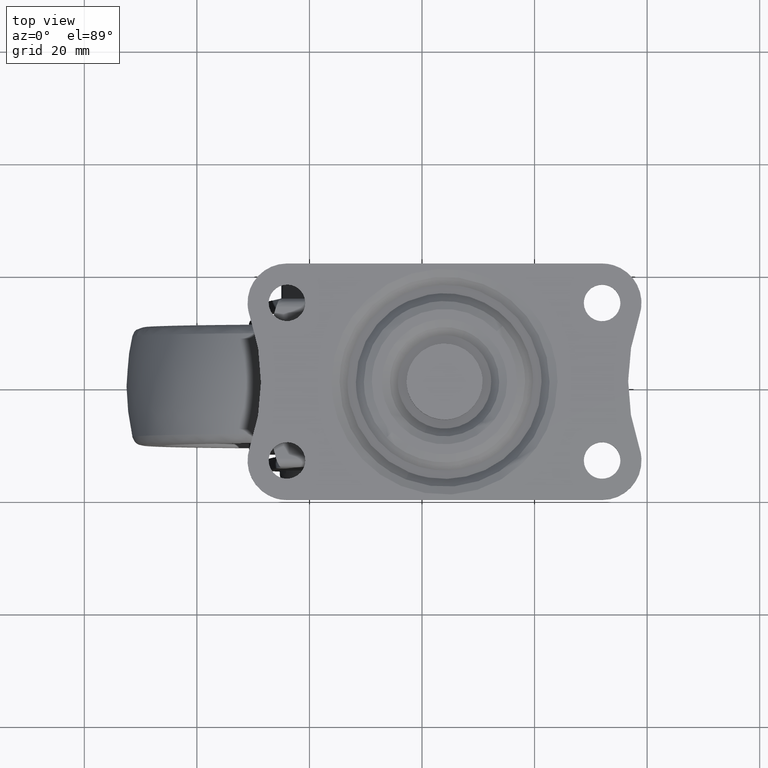
[diagram: clean part render]
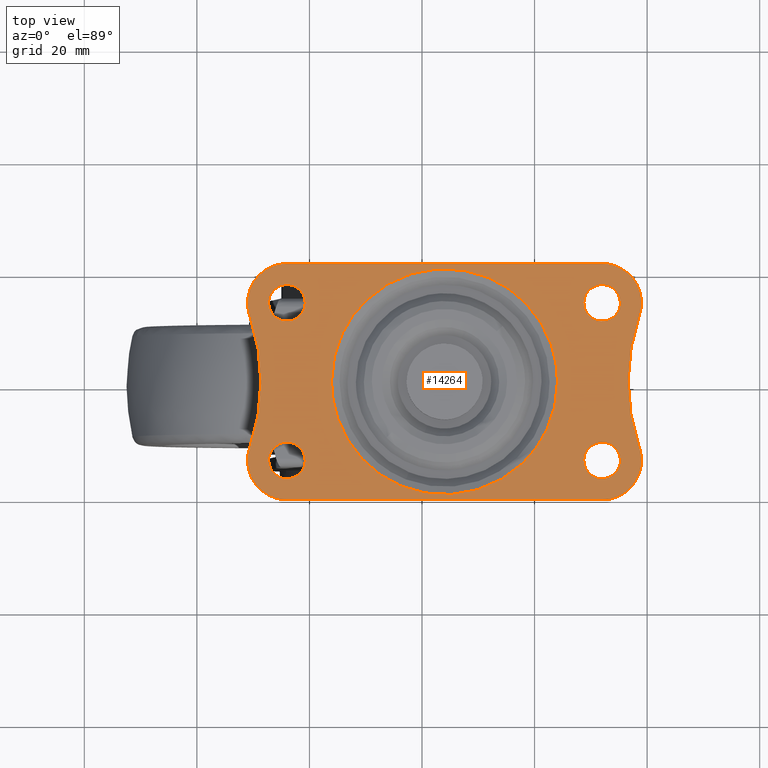
[diagram: same view with one face highlighted and labeled with its STEP entity id]
A machine part, top view. The second image highlights one B-rep face of the part: STEP entity #14264.
In plain terms, the highlighted face is a freeform B-spline surface patch.
Its self-contained STEP definition (entity closure, byte-faithful):
#13810=CARTESIAN_POINT('',(-14.495260061129150,-23.097899918595861,49.500004000000096));
#13811=CARTESIAN_POINT('',(62.495260426807043,-23.097899918595861,49.500004000000096));
#13812=CARTESIAN_POINT('',(-14.495260061129150,23.097901045123638,49.500004000000096));
#13813=CARTESIAN_POINT('',(62.495260426807043,23.097901045123638,49.500004000000096));
#13814=B_SPLINE_SURFACE_WITH_KNOTS('',1,1,((#13810,#13812),(#13811,#13813)),.UNSPECIFIED.,.F.,.F.,.U.,(2,2),(2,2),(0.0,76.990520487936180),(0.0,46.195800963719492),.UNSPECIFIED.);
#13815=CARTESIAN_POINT('',(-4.000000000000201,20.999991999999999,49.500004000000096));
#13816=VERTEX_POINT('',#13815);
#13817=CARTESIAN_POINT('',(52.0,21.0,49.500004000000096));
#13818=VERTEX_POINT('',#13817);
#13819=CARTESIAN_POINT('',(-4.000000000000201,20.999991999999999,49.500004000000096));
#13820=CARTESIAN_POINT('',(52.0,21.0,49.500004000000096));
#13821=QUASI_UNIFORM_CURVE('',1,(#13819,#13820),.UNSPECIFIED.,.F.,.U.);
#13822=EDGE_CURVE('',#13816,#13818,#13821,.T.);
#13823=ORIENTED_EDGE('',*,*,#13822,.F.);
#13824=CARTESIAN_POINT('',(-10.609302452750301,11.694110006271140,49.500004000000096));
#13825=VERTEX_POINT('',#13824);
#13826=CARTESIAN_POINT('',(-4.000000000000201,20.999991999999999,49.500004000000096));
#13827=CARTESIAN_POINT('',(-4.590817880181923,21.000143581031612,49.500004000000182));
#13828=CARTESIAN_POINT('',(-5.529068493665626,20.880465126120580,49.500003999999898));
#13829=CARTESIAN_POINT('',(-6.947926574388647,20.398175510146949,49.500004000000111));
#13830=CARTESIAN_POINT('',(-8.010244510494326,19.788161400590671,49.500004000000366));
#13831=CARTESIAN_POINT('',(-8.883741834818508,19.040968303882451,49.500003999999642));
#13832=CARTESIAN_POINT('',(-9.608926462760206,18.241633568485501,49.500004000000452));
#13833=CARTESIAN_POINT('',(-10.233940816855281,17.272628221677280,49.500004000000217));
#13834=CARTESIAN_POINT('',(-10.773155997097380,15.948513857360940,49.500003999999826));
#13835=CARTESIAN_POINT('',(-11.044553295906230,14.503740490516821,49.500004000000573));
#13836=CARTESIAN_POINT('',(-10.976428743371789,13.001531307668390,49.500003999999322));
#13837=CARTESIAN_POINT('',(-10.746698832655239,12.087864409828381,49.500004000000871));
#13838=CARTESIAN_POINT('',(-10.609302452750301,11.694110006271140,49.500004000000096));
#13839=B_SPLINE_CURVE_WITH_KNOTS('',3,(#13826,#13827,#13828,#13829,#13830,#13831,#13832,#13833,#13834,#13835,#13836,#13837,#13838),.UNSPECIFIED.,.F.,.U.,(4,1,1,1,1,1,1,1,1,1,4),(0.000000030756677,1.772421184083566,2.815052419987493,4.483245367878242,5.421609891618825,6.255699334423510,7.715336022270327,8.862210562082272,10.530409219150130,12.094328366116750,13.345459989930159),.UNSPECIFIED.);
#13840=EDGE_CURVE('',#13816,#13825,#13839,.T.);
#13841=ORIENTED_EDGE('',*,*,#13840,.T.);
#13842=CARTESIAN_POINT('',(-10.609300911396559,-11.694118695988420,49.500004000000096));
#13843=VERTEX_POINT('',#13842);
#13844=CARTESIAN_POINT('',(-10.609300911396559,-11.694118695988420,49.500004000000096));
#13845=CARTESIAN_POINT('',(-6.529409409928793,-0.000004075981618,49.500004000000104));
#13846=CARTESIAN_POINT('',(-10.609302452750290,11.694110006271130,49.500004000000096));
#13854=(BOUNDED_CURVE()B_SPLINE_CURVE(2,(#13844,#13845,#13846),.UNSPECIFIED.,.F.,.U.)CURVE()GEOMETRIC_REPRESENTATION_ITEM()QUASI_UNIFORM_CURVE()RATIONAL_B_SPLINE_CURVE((1.0,0.944186381534292,1.0))REPRESENTATION_ITEM(''));
#13855=EDGE_CURVE('',#13843,#13825,#13854,.T.);
#13856=ORIENTED_EDGE('',*,*,#13855,.F.);
#13857=CARTESIAN_POINT('',(-3.999996000000095,-21.0,49.500004000000096));
#13858=VERTEX_POINT('',#13857);
#13859=CARTESIAN_POINT('',(-10.609300911396559,-11.694118695988420,49.500004000000096));
#13860=CARTESIAN_POINT('',(-10.827075632768670,-12.317519731291700,49.500004000000047));
#13861=CARTESIAN_POINT('',(-11.036602549756390,-13.385283981151700,49.500004000000040));
#13862=CARTESIAN_POINT('',(-10.981547815569950,-14.884676388545749,49.500004000000288));
#13863=CARTESIAN_POINT('',(-10.735395471647101,-16.009513509752040,49.500004000000011));
#13864=CARTESIAN_POINT('',(-10.292534392574730,-17.145353167864421,49.500004000000089));
#13865=CARTESIAN_POINT('',(-9.732755403888293,-18.072700705970050,49.500004000000281));
#13866=CARTESIAN_POINT('',(-8.986506478503952,-18.946256495739110,49.500003999999997));
#13867=CARTESIAN_POINT('',(-8.227852279617316,-19.614864490665209,49.500004000000168));
#13868=CARTESIAN_POINT('',(-7.198313510599230,-20.268981308736809,49.500004000000011));
#13869=CARTESIAN_POINT('',(-5.807069678618808,-20.836506443681401,49.500004000000366));
#13870=CARTESIAN_POINT('',(-4.660329862911716,-21.000229990318850,49.500003999999663));
#13871=CARTESIAN_POINT('',(-3.999996000000095,-21.0,49.500004000000096));
#13872=B_SPLINE_CURVE_WITH_KNOTS('',3,(#13859,#13860,#13861,#13862,#13863,#13864,#13865,#13866,#13867,#13868,#13869,#13870,#13871),.UNSPECIFIED.,.F.,.U.,(4,1,1,1,1,1,1,1,1,1,4),(0.000000030607620,1.980946822740105,3.232103474479771,4.483245378366622,5.421609904388319,6.881246496898768,7.715336040620074,8.862210582713079,9.904831999159065,11.364500555676470,13.345460021234841),.UNSPECIFIED.);
#13873=EDGE_CURVE('',#13843,#13858,#13872,.T.);
#13874=ORIENTED_EDGE('',*,*,#13873,.T.);
#13875=CARTESIAN_POINT('',(52.0,-21.0,49.500004000000096));
#13876=VERTEX_POINT('',#13875);
#13877=CARTESIAN_POINT('',(52.0,-21.0,49.500004000000096));
#13878=CARTESIAN_POINT('',(-3.999996000000095,-21.0,49.500004000000096));
#13879=QUASI_UNIFORM_CURVE('',1,(#13877,#13878),.UNSPECIFIED.,.F.,.U.);
#13880=EDGE_CURVE('',#13876,#13858,#13879,.T.);
#13881=ORIENTED_EDGE('',*,*,#13880,.F.);
#13882=CARTESIAN_POINT('',(58.609300893695803,-11.694117002700880,49.500004000000096));
#13883=VERTEX_POINT('',#13882);
#13884=CARTESIAN_POINT('',(52.0,-21.0,49.500004000000096));
#13885=CARTESIAN_POINT('',(52.660347102165602,-21.000269293688039,49.500003999999997));
#13886=CARTESIAN_POINT('',(53.737524014230260,-20.846344989830861,49.500004000000182));
#13887=CARTESIAN_POINT('',(55.232634791455467,-20.262420056923251,49.500004000000153));
#13888=CARTESIAN_POINT('',(56.260813391096683,-19.598380166209569,49.500004000000018));
#13889=CARTESIAN_POINT('',(57.207973118888177,-18.725285979161580,49.500004000000217));
#13890=CARTESIAN_POINT('',(57.960000917128298,-17.760835829100820,49.500004000000189));
#13891=CARTESIAN_POINT('',(58.503759211200219,-16.666403447507189,49.500003999999933));
#13892=CARTESIAN_POINT('',(58.869437678890698,-15.504013918830211,49.500004000000317));
#13893=CARTESIAN_POINT('',(59.036363368870262,-14.327754264261840,49.500004000000708));
#13894=CARTESIAN_POINT('',(58.964627666531527,-12.968822975085040,49.500003999998839));
#13895=CARTESIAN_POINT('',(58.758174339768878,-12.120681764516929,49.500004000000992));
#13896=CARTESIAN_POINT('',(58.609300893695803,-11.694117002700880,49.500004000000096));
#13897=B_SPLINE_CURVE_WITH_KNOTS('',3,(#13884,#13885,#13886,#13887,#13888,#13889,#13890,#13891,#13892,#13893,#13894,#13895,#13896),.UNSPECIFIED.,.F.,.U.,(4,1,1,1,1,1,1,1,1,1,4),(0.000000030863946,1.980946914483642,3.232103623964944,4.796034121004691,5.630134421133231,7.089766381036650,8.445169831952786,9.279256728311722,10.738934241651670,11.990065895340830,13.345460637629790),.UNSPECIFIED.);
#13898=EDGE_CURVE('',#13876,#13883,#13897,.T.);
#13899=ORIENTED_EDGE('',*,*,#13898,.T.);
#13900=CARTESIAN_POINT('',(58.609304768415697,11.694118286165761,49.500004000000096));
#13901=VERTEX_POINT('',#13900);
#13902=CARTESIAN_POINT('',(58.609304768415697,11.694118286165761,49.500004000000096));
#13903=CARTESIAN_POINT('',(54.529407649958948,-0.000000083384210,49.500004000000104));
#13904=CARTESIAN_POINT('',(58.609300893695803,-11.694117002700880,49.500004000000096));
#13912=(BOUNDED_CURVE()B_SPLINE_CURVE(2,(#13902,#13903,#13904),.UNSPECIFIED.,.F.,.U.)CURVE()GEOMETRIC_REPRESENTATION_ITEM()QUASI_UNIFORM_CURVE()RATIONAL_B_SPLINE_CURVE((1.0,0.944186336941886,1.0))REPRESENTATION_ITEM(''));
#13913=EDGE_CURVE('',#13901,#13883,#13912,.T.);
#13914=ORIENTED_EDGE('',*,*,#13913,.F.);
#13915=CARTESIAN_POINT('',(58.609304768415697,11.694118286165761,49.500004000000096));
#13916=CARTESIAN_POINT('',(58.781122181626493,12.186294331711620,49.500004000000139));
#13917=CARTESIAN_POINT('',(58.959599809029690,12.970546693596370,49.500004000000089));
#13918=CARTESIAN_POINT('',(59.027473430861889,14.256943050028889,49.500004000000132));
#13919=CARTESIAN_POINT('',(58.907309630051621,15.333463204872229,49.500004000000061));
#13920=CARTESIAN_POINT('',(58.548145424196832,16.571216975460569,49.500004000000231));
#13921=CARTESIAN_POINT('',(58.073353934307413,17.544817833019160,49.500003999999947));
#13922=CARTESIAN_POINT('',(57.408036100113769,18.481481205179321,49.500004000000217));
#13923=CARTESIAN_POINT('',(56.568166335005060,19.367010271011981,49.500004000000096));
#13924=CARTESIAN_POINT('',(55.449847707803713,20.149739929041981,49.500004000000189));
#13925=CARTESIAN_POINT('',(54.293864993980137,20.641273222648589,49.500004000000317));
#13926=CARTESIAN_POINT('',(53.181594486161707,20.929085798153839,49.500003999999670));
#13927=CARTESIAN_POINT('',(52.451798431793712,21.000054179832031,49.500004000000281));
#13928=CARTESIAN_POINT('',(52.0,21.0,49.500004000000096));
#13929=B_SPLINE_CURVE_WITH_KNOTS('',3,(#13915,#13916,#13917,#13918,#13919,#13920,#13921,#13922,#13923,#13924,#13925,#13926,#13927,#13928),.UNSPECIFIED.,.F.,.U.,(4,1,1,1,1,1,1,1,1,1,1,4),(0.000000030605683,1.563896725557600,2.398000267779308,3.857674610128575,4.796034055454516,6.255699552766679,7.089766284622212,8.236650439493825,9.904832321311094,11.155979825326281,11.990065731704171,13.345460455295390),.UNSPECIFIED.);
#13930=EDGE_CURVE('',#13901,#13818,#13929,.T.);
#13931=ORIENTED_EDGE('',*,*,#13930,.T.);
#13932=EDGE_LOOP('',(#13823,#13841,#13856,#13874,#13881,#13899,#13914,#13931));
#13933=FACE_OUTER_BOUND('',#13932,.T.);
#13934=CARTESIAN_POINT('',(3.921572875253802,1.421085E-014,49.500004000000096));
#13935=VERTEX_POINT('',#13934);
#13936=CARTESIAN_POINT('',(10.072532652919721,14.462672259828960,49.500004000000089));
#13937=VERTEX_POINT('',#13936);
#13938=CARTESIAN_POINT('',(3.921572875253802,1.421085E-014,49.500004000000096));
#13939=CARTESIAN_POINT('',(3.921572877020295,8.539334591529752,49.500004000000096));
#13940=CARTESIAN_POINT('',(10.072532652919723,14.462672259828956,49.500004000000089));
#13948=(BOUNDED_CURVE()B_SPLINE_CURVE(2,(#13938,#13939,#13940),.UNSPECIFIED.,.F.,.U.)B_SPLINE_CURVE_WITH_KNOTS((3,3),(0.500000000000000,0.627844262562522),.UNSPECIFIED.)CURVE()GEOMETRIC_REPRESENTATION_ITEM()RATIONAL_B_SPLINE_CURVE((1.0,0.850221129724923,0.853629213191965))REPRESENTATION_ITEM(''));
#13949=EDGE_CURVE('',#13935,#13937,#13948,.T.);
#13950=ORIENTED_EDGE('',*,*,#13949,.T.);
#13951=CARTESIAN_POINT('',(44.078427124746213,1.421085E-014,49.500004000000096));
#13952=VERTEX_POINT('',#13951);
#13953=CARTESIAN_POINT('',(10.072532652919723,14.462672259828956,49.500004000000089));
#13954=CARTESIAN_POINT('',(15.904089821322337,20.078427121392043,49.500004000000089));
#13955=CARTESIAN_POINT('',(24.000000002517780,20.078427122131679,49.500004000000089));
#13956=CARTESIAN_POINT('',(44.078427125497498,20.078427123966058,49.500004000000096));
#13957=CARTESIAN_POINT('',(44.078427124746213,1.421085E-014,49.500004000000096));
#13965=(BOUNDED_CURVE()B_SPLINE_CURVE(2,(#13953,#13954,#13955,#13956,#13957),.UNSPECIFIED.,.F.,.U.)B_SPLINE_CURVE_WITH_KNOTS((3,2,3),(0.627844262562522,0.750000000000000,1.0),.UNSPECIFIED.)CURVE()GEOMETRIC_REPRESENTATION_ITEM()RATIONAL_B_SPLINE_CURVE((0.853629213191965,0.856885651461625,1.0,0.707106781186548,1.0))REPRESENTATION_ITEM(''));
#13966=EDGE_CURVE('',#13937,#13952,#13965,.T.);
#13967=ORIENTED_EDGE('',*,*,#13966,.T.);
#13968=CARTESIAN_POINT('',(37.927467347080281,-14.462672259828940,49.500004000000096));
#13969=VERTEX_POINT('',#13968);
#13970=CARTESIAN_POINT('',(44.078427124746213,1.421085E-014,49.500004000000096));
#13971=CARTESIAN_POINT('',(44.078427122979711,-8.539334591529729,49.500004000000096));
#13972=CARTESIAN_POINT('',(37.927467347080281,-14.462672259828944,49.500004000000096));
#13980=(BOUNDED_CURVE()B_SPLINE_CURVE(2,(#13970,#13971,#13972),.UNSPECIFIED.,.F.,.U.)B_SPLINE_CURVE_WITH_KNOTS((3,3),(0.0,0.127844262562522),.UNSPECIFIED.)CURVE()GEOMETRIC_REPRESENTATION_ITEM()RATIONAL_B_SPLINE_CURVE((1.0,0.850221129724922,0.853629213191965))REPRESENTATION_ITEM(''));
#13981=EDGE_CURVE('',#13952,#13969,#13980,.T.);
#13982=ORIENTED_EDGE('',*,*,#13981,.T.);
#13983=CARTESIAN_POINT('',(37.927467347080281,-14.462672259828944,49.500004000000096));
#13984=CARTESIAN_POINT('',(32.095910178677670,-20.078427121392014,49.500004000000096));
#13985=CARTESIAN_POINT('',(23.999999997482220,-20.078427122131650,49.500004000000096));
#13986=CARTESIAN_POINT('',(3.921572874502515,-20.078427123966033,49.500004000000096));
#13987=CARTESIAN_POINT('',(3.921572875253802,1.421085E-014,49.500004000000096));
#13995=(BOUNDED_CURVE()B_SPLINE_CURVE(2,(#13983,#13984,#13985,#13986,#13987),.UNSPECIFIED.,.F.,.U.)B_SPLINE_CURVE_WITH_KNOTS((3,2,3),(0.127844262562522,0.250000000000000,0.500000000000000),.UNSPECIFIED.)CURVE()GEOMETRIC_REPRESENTATION_ITEM()RATIONAL_B_SPLINE_CURVE((0.853629213191965,0.856885651461625,1.0,0.707106781186548,1.0))REPRESENTATION_ITEM(''));
#13996=EDGE_CURVE('',#13969,#13935,#13995,.T.);
#13997=ORIENTED_EDGE('',*,*,#13996,.T.);
#13998=EDGE_LOOP('',(#13950,#13967,#13982,#13997));
#13999=FACE_BOUND('',#13998,.T.);
#14000=CARTESIAN_POINT('',(48.749999999999993,14.0,49.500004000000096));
#14001=VERTEX_POINT('',#14000);
#14002=CARTESIAN_POINT('',(51.745007703110929,10.760018683923141,49.500004000000096));
#14003=VERTEX_POINT('',#14002);
#14004=CARTESIAN_POINT('',(48.749999999999993,14.0,49.500004000000096));
#14005=CARTESIAN_POINT('',(48.750000000000000,10.995731121407630,49.500004000000089));
#14006=CARTESIAN_POINT('',(51.745007703110929,10.760018683923125,49.500004000000096));
#14014=(BOUNDED_CURVE()B_SPLINE_CURVE(2,(#14004,#14005,#14006),.UNSPECIFIED.,.F.,.U.)B_SPLINE_CURVE_WITH_KNOTS((3,3),(0.500000000000000,0.736331288158200),.UNSPECIFIED.)CURVE()GEOMETRIC_REPRESENTATION_ITEM()RATIONAL_B_SPLINE_CURVE((1.0,0.723120673220061,0.969723330138347))REPRESENTATION_ITEM(''));
#14015=EDGE_CURVE('',#14001,#14003,#14014,.T.);
#14016=ORIENTED_EDGE('',*,*,#14015,.F.);
#14017=CARTESIAN_POINT('',(52.254992296889078,17.239981316076861,49.500004000000096));
#14018=VERTEX_POINT('',#14017);
#14019=CARTESIAN_POINT('',(52.254992296889085,17.239981316076875,49.500004000000104));
#14020=CARTESIAN_POINT('',(52.127692966208798,17.250000000000000,49.500004000000096));
#14021=CARTESIAN_POINT('',(52.0,17.250000000000000,49.500004000000096));
#14022=CARTESIAN_POINT('',(48.750000000000007,17.249999999999996,49.500004000000096));
#14023=CARTESIAN_POINT('',(48.749999999999993,14.0,49.500004000000096));
#14031=(BOUNDED_CURVE()B_SPLINE_CURVE(2,(#14019,#14020,#14021,#14022,#14023),.UNSPECIFIED.,.F.,.U.)B_SPLINE_CURVE_WITH_KNOTS((3,2,3),(0.236331288158199,0.250000000000000,0.500000000000000),.UNSPECIFIED.)CURVE()GEOMETRIC_REPRESENTATION_ITEM()RATIONAL_B_SPLINE_CURVE((0.969723330138345,0.983986107966485,1.0,0.707106781186547,1.0))REPRESENTATION_ITEM(''));
#14032=EDGE_CURVE('',#14018,#14001,#14031,.T.);
#14033=ORIENTED_EDGE('',*,*,#14032,.F.);
#14034=CARTESIAN_POINT('',(55.250000000000000,14.0,49.500004000000096));
#14035=VERTEX_POINT('',#14034);
#14036=CARTESIAN_POINT('',(55.250000000000000,14.0,49.500004000000096));
#14037=CARTESIAN_POINT('',(55.249999999999993,17.004268878592374,49.500004000000082));
#14038=CARTESIAN_POINT('',(52.254992296889085,17.239981316076872,49.500004000000096));
#14046=(BOUNDED_CURVE()B_SPLINE_CURVE(2,(#14036,#14037,#14038),.UNSPECIFIED.,.F.,.U.)B_SPLINE_CURVE_WITH_KNOTS((3,3),(0.0,0.236331288158199),.UNSPECIFIED.)CURVE()GEOMETRIC_REPRESENTATION_ITEM()RATIONAL_B_SPLINE_CURVE((1.0,0.723120673220062,0.969723330138346))REPRESENTATION_ITEM(''));
#14047=EDGE_CURVE('',#14035,#14018,#14046,.T.);
#14048=ORIENTED_EDGE('',*,*,#14047,.F.);
#14049=CARTESIAN_POINT('',(51.745007703110915,10.760018683923125,49.500004000000096));
#14050=CARTESIAN_POINT('',(51.872307033791202,10.749999999999996,49.500004000000096));
#14051=CARTESIAN_POINT('',(52.0,10.750000000000000,49.500004000000096));
#14052=CARTESIAN_POINT('',(55.249999999999986,10.750000000000000,49.500004000000096));
#14053=CARTESIAN_POINT('',(55.250000000000000,14.0,49.500004000000096));
#14061=(BOUNDED_CURVE()B_SPLINE_CURVE(2,(#14049,#14050,#14051,#14052,#14053),.UNSPECIFIED.,.F.,.U.)B_SPLINE_CURVE_WITH_KNOTS((3,2,3),(0.736331288158199,0.750000000000000,1.0),.UNSPECIFIED.)CURVE()GEOMETRIC_REPRESENTATION_ITEM()RATIONAL_B_SPLINE_CURVE((0.969723330138346,0.983986107966486,1.0,0.707106781186547,1.0))REPRESENTATION_ITEM(''));
#14062=EDGE_CURVE('',#14003,#14035,#14061,.T.);
#14063=ORIENTED_EDGE('',*,*,#14062,.F.);
#14064=EDGE_LOOP('',(#14016,#14033,#14048,#14063));
#14065=FACE_BOUND('',#14064,.T.);
#14066=CARTESIAN_POINT('',(48.749999999999993,-14.0,49.500004000000096));
#14067=VERTEX_POINT('',#14066);
#14068=CARTESIAN_POINT('',(51.745007703110929,-17.239981316076861,49.500004000000096));
#14069=VERTEX_POINT('',#14068);
#14070=CARTESIAN_POINT('',(48.749999999999993,-14.0,49.500004000000096));
#14071=CARTESIAN_POINT('',(48.750000000000000,-17.004268878592367,49.500004000000089));
#14072=CARTESIAN_POINT('',(51.745007703110929,-17.239981316076872,49.500004000000096));
#14080=(BOUNDED_CURVE()B_SPLINE_CURVE(2,(#14070,#14071,#14072),.UNSPECIFIED.,.F.,.U.)B_SPLINE_CURVE_WITH_KNOTS((3,3),(0.500000000000000,0.736331288158200),.UNSPECIFIED.)CURVE()GEOMETRIC_REPRESENTATION_ITEM()RATIONAL_B_SPLINE_CURVE((1.0,0.723120673220061,0.969723330138347))REPRESENTATION_ITEM(''));
#14081=EDGE_CURVE('',#14067,#14069,#14080,.T.);
#14082=ORIENTED_EDGE('',*,*,#14081,.F.);
#14083=CARTESIAN_POINT('',(52.254992296889078,-10.760018683923141,49.500004000000096));
#14084=VERTEX_POINT('',#14083);
#14085=CARTESIAN_POINT('',(52.254992296889085,-10.760018683923127,49.500004000000104));
#14086=CARTESIAN_POINT('',(52.127692966208798,-10.750000000000004,49.500004000000096));
#14087=CARTESIAN_POINT('',(52.0,-10.750000000000000,49.500004000000096));
#14088=CARTESIAN_POINT('',(48.750000000000007,-10.750000000000000,49.500004000000096));
#14089=CARTESIAN_POINT('',(48.749999999999993,-14.0,49.500004000000096));
#14097=(BOUNDED_CURVE()B_SPLINE_CURVE(2,(#14085,#14086,#14087,#14088,#14089),.UNSPECIFIED.,.F.,.U.)B_SPLINE_CURVE_WITH_KNOTS((3,2,3),(0.236331288158199,0.250000000000000,0.500000000000000),.UNSPECIFIED.)CURVE()GEOMETRIC_REPRESENTATION_ITEM()RATIONAL_B_SPLINE_CURVE((0.969723330138345,0.983986107966485,1.0,0.707106781186547,1.0))REPRESENTATION_ITEM(''));
#14098=EDGE_CURVE('',#14084,#14067,#14097,.T.);
#14099=ORIENTED_EDGE('',*,*,#14098,.F.);
#14100=CARTESIAN_POINT('',(55.250000000000000,-14.0,49.500004000000096));
#14101=VERTEX_POINT('',#14100);
#14102=CARTESIAN_POINT('',(55.250000000000000,-14.0,49.500004000000096));
#14103=CARTESIAN_POINT('',(55.249999999999979,-10.995731121407635,49.500004000000096));
#14104=CARTESIAN_POINT('',(52.254992296889093,-10.760018683923132,49.500004000000089));
#14112=(BOUNDED_CURVE()B_SPLINE_CURVE(2,(#14102,#14103,#14104),.UNSPECIFIED.,.F.,.U.)B_SPLINE_CURVE_WITH_KNOTS((3,3),(0.0,0.236331288158199),.UNSPECIFIED.)CURVE()GEOMETRIC_REPRESENTATION_ITEM()RATIONAL_B_SPLINE_CURVE((1.0,0.723120673220062,0.969723330138346))REPRESENTATION_ITEM(''));
#14113=EDGE_CURVE('',#14101,#14084,#14112,.T.);
#14114=ORIENTED_EDGE('',*,*,#14113,.F.);
#14115=CARTESIAN_POINT('',(51.745007703110915,-17.239981316076875,49.500004000000096));
#14116=CARTESIAN_POINT('',(51.872307033791202,-17.250000000000004,49.500004000000096));
#14117=CARTESIAN_POINT('',(52.0,-17.250000000000000,49.500004000000096));
#14118=CARTESIAN_POINT('',(55.249999999999986,-17.249999999999996,49.500004000000096));
#14119=CARTESIAN_POINT('',(55.250000000000000,-14.0,49.500004000000096));
#14127=(BOUNDED_CURVE()B_SPLINE_CURVE(2,(#14115,#14116,#14117,#14118,#14119),.UNSPECIFIED.,.F.,.U.)B_SPLINE_CURVE_WITH_KNOTS((3,2,3),(0.736331288158199,0.750000000000000,1.0),.UNSPECIFIED.)CURVE()GEOMETRIC_REPRESENTATION_ITEM()RATIONAL_B_SPLINE_CURVE((0.969723330138346,0.983986107966486,1.0,0.707106781186547,1.0))REPRESENTATION_ITEM(''));
#14128=EDGE_CURVE('',#14069,#14101,#14127,.T.);
#14129=ORIENTED_EDGE('',*,*,#14128,.F.);
#14130=EDGE_LOOP('',(#14082,#14099,#14114,#14129));
#14131=FACE_BOUND('',#14130,.T.);
#14132=CARTESIAN_POINT('',(-7.250000000000201,14.0,49.500004000000096));
#14133=VERTEX_POINT('',#14132);
#14134=CARTESIAN_POINT('',(-4.254992296889276,10.760018683923141,49.500004000000096));
#14135=VERTEX_POINT('',#14134);
#14136=CARTESIAN_POINT('',(-7.250000000000201,14.0,49.500004000000096));
#14137=CARTESIAN_POINT('',(-7.250000000000202,10.995731121407630,49.500004000000089));
#14138=CARTESIAN_POINT('',(-4.254992296889277,10.760018683923125,49.500004000000096));
#14146=(BOUNDED_CURVE()B_SPLINE_CURVE(2,(#14136,#14137,#14138),.UNSPECIFIED.,.F.,.U.)B_SPLINE_CURVE_WITH_KNOTS((3,3),(0.500000000000000,0.736331288158200),.UNSPECIFIED.)CURVE()GEOMETRIC_REPRESENTATION_ITEM()RATIONAL_B_SPLINE_CURVE((1.0,0.723120673220061,0.969723330138347))REPRESENTATION_ITEM(''));
#14147=EDGE_CURVE('',#14133,#14135,#14146,.T.);
#14148=ORIENTED_EDGE('',*,*,#14147,.F.);
#14149=CARTESIAN_POINT('',(-3.745007703111125,17.239981316076861,49.500004000000096));
#14150=VERTEX_POINT('',#14149);
#14151=CARTESIAN_POINT('',(-3.745007703111124,17.239981316076872,49.500004000000089));
#14152=CARTESIAN_POINT('',(-3.872307033791409,17.249999999999996,49.500004000000096));
#14153=CARTESIAN_POINT('',(-4.000000000000201,17.250000000000000,49.500004000000096));
#14154=CARTESIAN_POINT('',(-7.250000000000201,17.249999999999996,49.500004000000096));
#14155=CARTESIAN_POINT('',(-7.250000000000201,14.0,49.500004000000096));
#14163=(BOUNDED_CURVE()B_SPLINE_CURVE(2,(#14151,#14152,#14153,#14154,#14155),.UNSPECIFIED.,.F.,.U.)B_SPLINE_CURVE_WITH_KNOTS((3,2,3),(0.236331288158200,0.250000000000000,0.500000000000000),.UNSPECIFIED.)CURVE()GEOMETRIC_REPRESENTATION_ITEM()RATIONAL_B_SPLINE_CURVE((0.969723330138347,0.983986107966486,1.0,0.707106781186547,1.0))REPRESENTATION_ITEM(''));
#14164=EDGE_CURVE('',#14150,#14133,#14163,.T.);
#14165=ORIENTED_EDGE('',*,*,#14164,.F.);
#14166=CARTESIAN_POINT('',(-0.750000000000201,14.0,49.500004000000096));
#14167=VERTEX_POINT('',#14166);
#14168=CARTESIAN_POINT('',(-0.750000000000201,14.0,49.500004000000096));
#14169=CARTESIAN_POINT('',(-0.750000000000201,17.004268878592367,49.500004000000089));
#14170=CARTESIAN_POINT('',(-3.745007703111124,17.239981316076872,49.500004000000089));
#14178=(BOUNDED_CURVE()B_SPLINE_CURVE(2,(#14168,#14169,#14170),.UNSPECIFIED.,.F.,.U.)B_SPLINE_CURVE_WITH_KNOTS((3,3),(0.0,0.236331288158200),.UNSPECIFIED.)CURVE()GEOMETRIC_REPRESENTATION_ITEM()RATIONAL_B_SPLINE_CURVE((1.0,0.723120673220061,0.969723330138347))REPRESENTATION_ITEM(''));
#14179=EDGE_CURVE('',#14167,#14150,#14178,.T.);
#14180=ORIENTED_EDGE('',*,*,#14179,.F.);
#14181=CARTESIAN_POINT('',(-4.254992296889277,10.760018683923125,49.500004000000096));
#14182=CARTESIAN_POINT('',(-4.127692966208993,10.749999999999995,49.500004000000096));
#14183=CARTESIAN_POINT('',(-4.000000000000201,10.750000000000000,49.500004000000096));
#14184=CARTESIAN_POINT('',(-0.750000000000201,10.750000000000000,49.500004000000096));
#14185=CARTESIAN_POINT('',(-0.750000000000201,14.0,49.500004000000096));
#14193=(BOUNDED_CURVE()B_SPLINE_CURVE(2,(#14181,#14182,#14183,#14184,#14185),.UNSPECIFIED.,.F.,.U.)B_SPLINE_CURVE_WITH_KNOTS((3,2,3),(0.736331288158200,0.750000000000000,1.0),.UNSPECIFIED.)CURVE()GEOMETRIC_REPRESENTATION_ITEM()RATIONAL_B_SPLINE_CURVE((0.969723330138347,0.983986107966486,1.0,0.707106781186547,1.0))REPRESENTATION_ITEM(''));
#14194=EDGE_CURVE('',#14135,#14167,#14193,.T.);
#14195=ORIENTED_EDGE('',*,*,#14194,.F.);
#14196=EDGE_LOOP('',(#14148,#14165,#14180,#14195));
#14197=FACE_BOUND('',#14196,.T.);
#14198=CARTESIAN_POINT('',(-7.250000000000195,-14.000008000000101,49.500004000000096));
#14199=VERTEX_POINT('',#14198);
#14200=CARTESIAN_POINT('',(-4.254992296889270,-17.239989316076969,49.500004000000096));
#14201=VERTEX_POINT('',#14200);
#14202=CARTESIAN_POINT('',(-7.250000000000195,-14.000008000000101,49.500004000000096));
#14203=CARTESIAN_POINT('',(-7.250000000000195,-17.004276878592471,49.500004000000089));
#14204=CARTESIAN_POINT('',(-4.254992296889270,-17.239989316076976,49.500004000000096));
#14212=(BOUNDED_CURVE()B_SPLINE_CURVE(2,(#14202,#14203,#14204),.UNSPECIFIED.,.F.,.U.)B_SPLINE_CURVE_WITH_KNOTS((3,3),(0.500000000000000,0.736331288158200),.UNSPECIFIED.)CURVE()GEOMETRIC_REPRESENTATION_ITEM()RATIONAL_B_SPLINE_CURVE((1.0,0.723120673220061,0.969723330138347))REPRESENTATION_ITEM(''));
#14213=EDGE_CURVE('',#14199,#14201,#14212,.T.);
#14214=ORIENTED_EDGE('',*,*,#14213,.F.);
#14215=CARTESIAN_POINT('',(-3.745007703111121,-10.760026683923240,49.500004000000096));
#14216=VERTEX_POINT('',#14215);
#14217=CARTESIAN_POINT('',(-3.745007703111121,-10.760026683923225,49.500004000000096));
#14218=CARTESIAN_POINT('',(-3.872307033791404,-10.750008000000102,49.500004000000096));
#14219=CARTESIAN_POINT('',(-4.000000000000195,-10.750008000000101,49.500004000000096));
#14220=CARTESIAN_POINT('',(-7.250000000000195,-10.750008000000101,49.500004000000096));
#14221=CARTESIAN_POINT('',(-7.250000000000195,-14.000008000000101,49.500004000000096));
#14229=(BOUNDED_CURVE()B_SPLINE_CURVE(2,(#14217,#14218,#14219,#14220,#14221),.UNSPECIFIED.,.F.,.U.)B_SPLINE_CURVE_WITH_KNOTS((3,2,3),(0.236331288158200,0.250000000000000,0.500000000000000),.UNSPECIFIED.)CURVE()GEOMETRIC_REPRESENTATION_ITEM()RATIONAL_B_SPLINE_CURVE((0.969723330138347,0.983986107966486,1.0,0.707106781186547,1.0))REPRESENTATION_ITEM(''));
#14230=EDGE_CURVE('',#14216,#14199,#14229,.T.);
#14231=ORIENTED_EDGE('',*,*,#14230,.F.);
#14232=CARTESIAN_POINT('',(-0.750000000000195,-14.000008000000101,49.500004000000096));
#14233=VERTEX_POINT('',#14232);
#14234=CARTESIAN_POINT('',(-0.750000000000195,-14.000008000000101,49.500004000000096));
#14235=CARTESIAN_POINT('',(-0.750000000000196,-10.995739121407730,49.500004000000089));
#14236=CARTESIAN_POINT('',(-3.745007703111121,-10.760026683923225,49.500004000000096));
#14244=(BOUNDED_CURVE()B_SPLINE_CURVE(2,(#14234,#14235,#14236),.UNSPECIFIED.,.F.,.U.)B_SPLINE_CURVE_WITH_KNOTS((3,3),(0.0,0.236331288158200),.UNSPECIFIED.)CURVE()GEOMETRIC_REPRESENTATION_ITEM()RATIONAL_B_SPLINE_CURVE((1.0,0.723120673220061,0.969723330138347))REPRESENTATION_ITEM(''));
#14245=EDGE_CURVE('',#14233,#14216,#14244,.T.);
#14246=ORIENTED_EDGE('',*,*,#14245,.F.);
#14247=CARTESIAN_POINT('',(-4.254992296889270,-17.239989316076976,49.500004000000096));
#14248=CARTESIAN_POINT('',(-4.127692966208987,-17.250008000000101,49.500004000000096));
#14249=CARTESIAN_POINT('',(-4.000000000000195,-17.250008000000101,49.500004000000096));
#14250=CARTESIAN_POINT('',(-0.750000000000196,-17.250008000000093,49.500004000000096));
#14251=CARTESIAN_POINT('',(-0.750000000000195,-14.000008000000101,49.500004000000096));
#14259=(BOUNDED_CURVE()B_SPLINE_CURVE(2,(#14247,#14248,#14249,#14250,#14251),.UNSPECIFIED.,.F.,.U.)B_SPLINE_CURVE_WITH_KNOTS((3,2,3),(0.736331288158200,0.750000000000000,1.0),.UNSPECIFIED.)CURVE()GEOMETRIC_REPRESENTATION_ITEM()RATIONAL_B_SPLINE_CURVE((0.969723330138347,0.983986107966486,1.0,0.707106781186547,1.0))REPRESENTATION_ITEM(''));
#14260=EDGE_CURVE('',#14201,#14233,#14259,.T.);
#14261=ORIENTED_EDGE('',*,*,#14260,.F.);
#14262=EDGE_LOOP('',(#14214,#14231,#14246,#14261));
#14263=FACE_BOUND('',#14262,.T.);
#14264=ADVANCED_FACE('',(#13933,#13999,#14065,#14131,#14197,#14263),#13814,.T.);